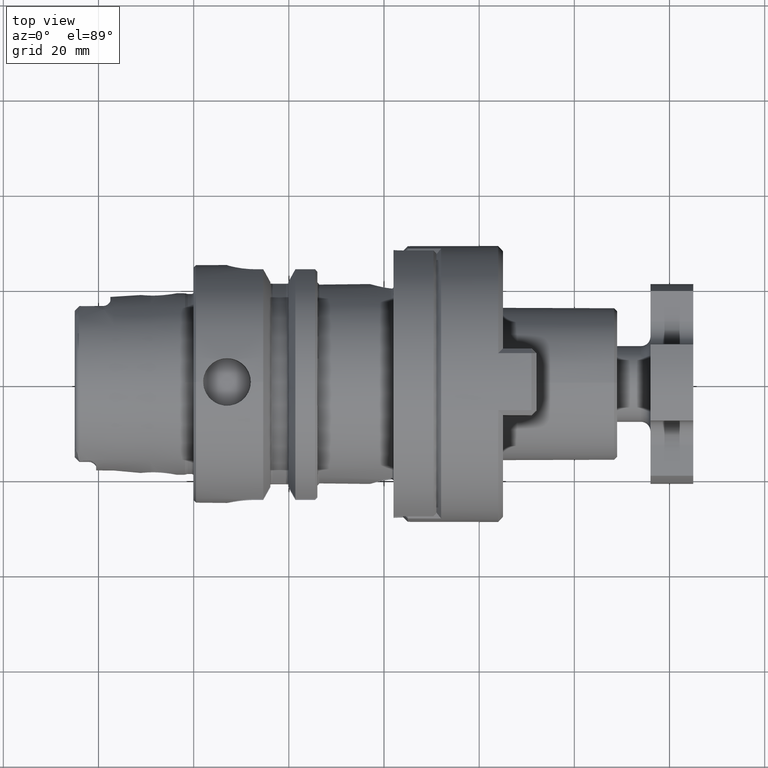
[diagram: clean part render]
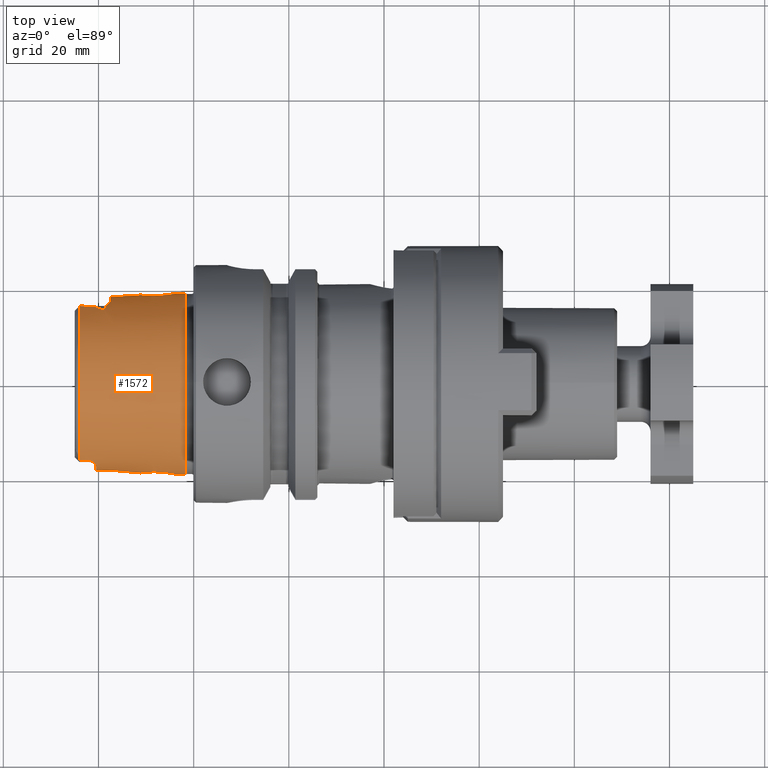
[diagram: same view with one face highlighted and labeled with its STEP entity id]
A machine part, top view. The second image highlights one B-rep face of the part: STEP entity #1572.
In plain terms, the highlighted conical surface has half-angle 2.862 deg.
Its self-contained STEP definition (entity closure, byte-faithful):
#1572 = ADVANCED_FACE( '', ( #3014, #3015, #3016, #3017 ), #3018, .T. );
#3014 = FACE_OUTER_BOUND( '', #3838, .T. );
#3015 = FACE_BOUND( '', #3839, .T. );
#3016 = FACE_BOUND( '', #3840, .T. );
#3017 = FACE_BOUND( '', #3841, .T. );
#3018 = CONICAL_SURFACE( '', #3842, 18.0475050107994, 0.0499583045087421 );
#3838 = EDGE_LOOP( '', ( #4907 ) );
#3839 = EDGE_LOOP( '', ( #4908 ) );
#3840 = EDGE_LOOP( '', ( #4909 ) );
#3841 = EDGE_LOOP( '', ( #4910, #4911, #4912, #4913, #4914, #4915, #4916, #4917, #4918, #4919, #4920, #4921, #4922, #4923, #4924, #4925, #4926, #4927, #4928, #4929 ) );
#3842 = AXIS2_PLACEMENT_3D( '', #4930, #4931, #4932 );
#4907 = ORIENTED_EDGE( '', *, *, #7412, .T. );
#4908 = ORIENTED_EDGE( '', *, *, #7413, .F. );
#4909 = ORIENTED_EDGE( '', *, *, #7414, .F. );
#4910 = ORIENTED_EDGE( '', *, *, #7415, .T. );
#4911 = ORIENTED_EDGE( '', *, *, #7416, .F. );
#4912 = ORIENTED_EDGE( '', *, *, #7417, .T. );
#4913 = ORIENTED_EDGE( '', *, *, #7418, .T. );
#4914 = ORIENTED_EDGE( '', *, *, #7419, .T. );
#4915 = ORIENTED_EDGE( '', *, *, #7420, .T. );
#4916 = ORIENTED_EDGE( '', *, *, #7421, .T. );
#4917 = ORIENTED_EDGE( '', *, *, #7422, .T. );
#4918 = ORIENTED_EDGE( '', *, *, #7423, .T. );
#4919 = ORIENTED_EDGE( '', *, *, #7424, .T. );
#4920 = ORIENTED_EDGE( '', *, *, #7425, .T. );
#4921 = ORIENTED_EDGE( '', *, *, #7426, .T. );
#4922 = ORIENTED_EDGE( '', *, *, #7427, .F. );
#4923 = ORIENTED_EDGE( '', *, *, #7428, .F. );
#4924 = ORIENTED_EDGE( '', *, *, #7429, .F. );
#4925 = ORIENTED_EDGE( '', *, *, #7430, .F. );
#4926 = ORIENTED_EDGE( '', *, *, #7431, .T. );
#4927 = ORIENTED_EDGE( '', *, *, #7432, .F. );
#4928 = ORIENTED_EDGE( '', *, *, #7433, .T. );
#4929 = ORIENTED_EDGE( '', *, *, #7434, .F. );
#4930 = CARTESIAN_POINT( '', ( -24.0499375258445, 0.000000000000000, 0.000000000000000 ) );
#4931 = DIRECTION( '', ( 1.00000000000000, -0.000000000000000, 0.000000000000000 ) );
#4932 = DIRECTION( '', ( 0.000000000000000, 0.000000000000000, -1.00000000000000 ) );
#7412 = EDGE_CURVE( '', #8160, #8160, #8161, .F. );
#7413 = EDGE_CURVE( '', #8162, #8162, #8163, .T. );
#7414 = EDGE_CURVE( '', #8164, #8164, #8165, .T. );
#7415 = EDGE_CURVE( '', #8166, #8167, #8168, .T. );
#7416 = EDGE_CURVE( '', #8169, #8167, #8170, .T. );
#7417 = EDGE_CURVE( '', #8169, #8171, #8172, .T. );
#7418 = EDGE_CURVE( '', #8171, #8173, #8174, .T. );
#7419 = EDGE_CURVE( '', #8173, #8175, #8176, .T. );
#7420 = EDGE_CURVE( '', #8175, #8177, #8178, .T. );
#7421 = EDGE_CURVE( '', #8177, #8179, #8180, .T. );
#7422 = EDGE_CURVE( '', #8179, #8181, #8182, .T. );
#7423 = EDGE_CURVE( '', #8181, #8183, #8184, .T. );
#7424 = EDGE_CURVE( '', #8183, #8185, #8186, .T. );
#7425 = EDGE_CURVE( '', #8185, #8187, #8188, .T. );
#7426 = EDGE_CURVE( '', #8187, #8189, #8190, .T. );
#7427 = EDGE_CURVE( '', #8191, #8189, #8192, .T. );
#7428 = EDGE_CURVE( '', #8193, #8191, #8194, .T. );
#7429 = EDGE_CURVE( '', #8195, #8193, #8196, .T. );
#7430 = EDGE_CURVE( '', #8197, #8195, #8198, .T. );
#7431 = EDGE_CURVE( '', #8197, #8199, #8200, .T. );
#7432 = EDGE_CURVE( '', #8201, #8199, #8202, .T. );
#7433 = EDGE_CURVE( '', #8201, #8203, #8204, .T. );
#7434 = EDGE_CURVE( '', #8166, #8203, #8205, .T. );
#8160 = VERTEX_POINT( '', #8647 );
#8161 = CIRCLE( '', #8648, 19.1585703653503 );
#8162 = VERTEX_POINT( '', #8649 );
#8163 = B_SPLINE_CURVE_WITH_KNOTS( '', 3, ( #8650, #8651, #8652, #8653, #8654, #8655, #8656, #8657, #8658, #8659, #8660, #8661, #8662, #8663, #8664, #8665, #8666, #8667, #8668, #8669, #8670, #8671, #8672, #8673, #8674, #8675, #8676, #8677, #8678, #8679, #8680, #8681, #8682, #8683, #8684, #8685, #8686, #8687, #8688, #8689, #8690, #8691, #8692, #8693, #8694, #8695, #8696, #8697, #8698, #8699, #8700, #8701, #8702, #8703, #8704, #8705, #8706, #8707, #8708, #8709, #8710, #8711, #8712, #8713 ), .UNSPECIFIED., .T., .F., ( 2, 2, 2, 2, 2, 2, 2, 2, 2, 2, 2, 2, 2, 2, 2, 2, 2, 2, 2, 2, 2, 2, 2, 2, 2, 2, 2, 2, 2, 2, 2, 2, 2, 2 ), ( -0.000724843558663982, 0.000000000000000, 0.000724843558663981, 0.00144968711732796, 0.00217453067599194, 0.00289937423465592, 0.00362421779331990, 0.00434906135198388, 0.00507390491064786, 0.00579874846931184, 0.00652359202797582, 0.00724843558663980, 0.00797327914530379, 0.00869812270396777, 0.00942296626263175, 0.0101478098212957, 0.0115974969386237, 0.0123223404972877, 0.0130471840559517, 0.0137720276146157, 0.0144968711732796, 0.0152217147319436, 0.0159465582906076, 0.0166714018492716, 0.0173962454079356, 0.0181210889665996, 0.0188459325252635, 0.0195707760839275, 0.0202956196425915, 0.0210204632012555, 0.0217453067599195, 0.0224701503185834, 0.0231949938772474, 0.0239198374359114 ), .UNSPECIFIED. );
#8164 = VERTEX_POINT( '', #8714 );
#8165 = B_SPLINE_CURVE_WITH_KNOTS( '', 3, ( #8715, #8716, #8717, #8718, #8719, #8720, #8721, #8722, #8723, #8724, #8725, #8726, #8727, #8728, #8729, #8730, #8731, #8732, #8733, #8734, #8735, #8736, #8737, #8738, #8739, #8740, #8741, #8742, #8743, #8744, #8745, #8746, #8747, #8748, #8749, #8750, #8751, #8752, #8753, #8754, #8755, #8756, #8757, #8758, #8759, #8760, #8761, #8762, #8763, #8764, #8765, #8766, #8767, #8768, #8769, #8770, #8771, #8772, #8773, #8774, #8775, #8776, #8777, #8778 ), .UNSPECIFIED., .T., .F., ( 2, 2, 2, 2, 2, 2, 2, 2, 2, 2, 2, 2, 2, 2, 2, 2, 2, 2, 2, 2, 2, 2, 2, 2, 2, 2, 2, 2, 2, 2, 2, 2, 2, 2 ), ( -0.000725615469152767, 0.000000000000000, 0.000725615469152767, 0.00145123093830553, 0.00217684640745830, 0.00290246187661107, 0.00362807734576384, 0.00435369281491660, 0.00580492375322213, 0.00653053922237490, 0.00725615469152767, 0.00798177016068043, 0.00870738562983320, 0.00943300109898597, 0.0101586165681387, 0.0108842320372915, 0.0116098475064443, 0.0123354629755970, 0.0130610784447498, 0.0137866939139026, 0.0145123093830553, 0.0152379248522081, 0.0159635403213609, 0.0166891557905136, 0.0174147712596664, 0.0181403867288192, 0.0188660021979719, 0.0195916176671247, 0.0203172331362775, 0.0210428486054303, 0.0217684640745830, 0.0224940795437358, 0.0232196950128886, 0.0239453104820413 ), .UNSPECIFIED. );
#8166 = VERTEX_POINT( '', #8779 );
#8167 = VERTEX_POINT( '', #8780 );
#8168 = B_SPLINE_CURVE_WITH_KNOTS( '', 3, ( #8781, #8782, #8783, #8784 ), .UNSPECIFIED., .F., .F., ( 4, 4 ), ( 2.14232988485379E-005, 0.000172750419805549 ), .UNSPECIFIED. );
#8169 = VERTEX_POINT( '', #8785 );
#8170 = CIRCLE( '', #8786, 18.0475050107994 );
#8171 = VERTEX_POINT( '', #8787 );
#8172 = B_SPLINE_CURVE_WITH_KNOTS( '', 3, ( #8788, #8789, #8790, #8791 ), .UNSPECIFIED., .F., .F., ( 4, 4 ), ( 6.46585174727302E-007, 0.000151973706116084 ), .UNSPECIFIED. );
#8173 = VERTEX_POINT( '', #8792 );
#8174 = B_SPLINE_CURVE_WITH_KNOTS( '', 3, ( #8793, #8794, #8795, #8796, #8797, #8798, #8799, #8800, #8801, #8802, #8803, #8804, #8805, #8806 ), .UNSPECIFIED., .F., .F., ( 4, 2, 2, 2, 2, 2, 4 ), ( 2.01940335135864E-007, 0.00185399639713627, 0.00278089362553684, 0.00324434223973713, 0.00347606654683726, 0.00359192870038733, 0.00370779085393740 ), .UNSPECIFIED. );
#8175 = VERTEX_POINT( '', #8807 );
#8176 = B_SPLINE_CURVE_WITH_KNOTS( '', 3, ( #8808, #8809, #8810, #8811, #8812, #8813, #8814, #8815 ), .UNSPECIFIED., .F., .F., ( 4, 2, 2, 4 ), ( 0.00272147290960704, 0.00319551936517423, 0.00366956582074142, 0.00461765873187579 ), .UNSPECIFIED. );
#8177 = VERTEX_POINT( '', #8816 );
#8178 = B_SPLINE_CURVE_WITH_KNOTS( '', 3, ( #8817, #8818, #8819, #8820, #8821, #8822, #8823, #8824, #8825, #8826, #8827, #8828 ), .UNSPECIFIED., .F., .F., ( 4, 2, 2, 2, 2, 4 ), ( 0.000211261635213960, 0.000302208030544411, 0.000393154425874861, 0.000575047216535760, 0.000938832797857559, 0.00166640396050116 ), .UNSPECIFIED. );
#8179 = VERTEX_POINT( '', #8829 );
#8180 = B_SPLINE_CURVE_WITH_KNOTS( '', 3, ( #8830, #8831, #8832, #8833, #8834, #8835, #8836, #8837, #8838, #8839, #8840, #8841 ), .UNSPECIFIED., .F., .F., ( 4, 2, 2, 2, 2, 4 ), ( 3.11903676958481E-005, 0.000436488344966224, 0.000841786322236600, 0.00165238227677735, 0.00246297823131810, 0.00327357418585884 ), .UNSPECIFIED. );
#8181 = VERTEX_POINT( '', #8842 );
#8182 = CIRCLE( '', #8843, 18.3750012881573 );
#8183 = VERTEX_POINT( '', #8844 );
#8184 = B_SPLINE_CURVE_WITH_KNOTS( '', 3, ( #8845, #8846, #8847, #8848, #8849, #8850, #8851, #8852, #8853, #8854, #8855, #8856 ), .UNSPECIFIED., .F., .F., ( 4, 2, 2, 2, 2, 4 ), ( 0.000291013436736622, 0.00110220606264915, 0.00191339868856168, 0.00272459131447420, 0.00313018762743046, 0.00353578394038672 ), .UNSPECIFIED. );
#8185 = VERTEX_POINT( '', #8857 );
#8186 = B_SPLINE_CURVE_WITH_KNOTS( '', 3, ( #8858, #8859, #8860, #8861, #8862, #8863, #8864, #8865, #8866, #8867, #8868, #8869 ), .UNSPECIFIED., .F., .F., ( 4, 2, 2, 2, 2, 4 ), ( 6.80275170176832E-005, 0.000787544806764243, 0.00114730345163752, 0.00132718277407416, 0.00141712243529247, 0.00150706209651078 ), .UNSPECIFIED. );
#8187 = VERTEX_POINT( '', #8870 );
#8188 = B_SPLINE_CURVE_WITH_KNOTS( '', 3, ( #8871, #8872, #8873, #8874, #8875, #8876, #8877, #8878 ), .UNSPECIFIED., .F., .F., ( 4, 2, 2, 4 ), ( 0.00221302517324964, 0.00316142336737465, 0.00363562246443716, 0.00410982156149967 ), .UNSPECIFIED. );
#8189 = VERTEX_POINT( '', #8879 );
#8190 = B_SPLINE_CURVE_WITH_KNOTS( '', 3, ( #8880, #8881, #8882, #8883, #8884, #8885, #8886, #8887, #8888, #8889, #8890, #8891, #8892, #8893 ), .UNSPECIFIED., .F., .F., ( 4, 2, 2, 2, 2, 2, 4 ), ( 2.51352268893116E-007, 0.000116655479580614, 0.000233059606892335, 0.000465867861515786, 0.000931484370762687, 0.00186271738925648, 0.00372518342624406 ), .UNSPECIFIED. );
#8191 = VERTEX_POINT( '', #8894 );
#8192 = B_SPLINE_CURVE_WITH_KNOTS( '', 3, ( #8895, #8896, #8897, #8898 ), .UNSPECIFIED., .F., .F., ( 4, 4 ), ( 6.46585174602229E-007, 0.000151973706112484 ), .UNSPECIFIED. );
#8193 = VERTEX_POINT( '', #8899 );
#8194 = CIRCLE( '', #8900, 18.0475050107994 );
#8195 = VERTEX_POINT( '', #8901 );
#8196 = B_SPLINE_CURVE_WITH_KNOTS( '', 3, ( #8902, #8903, #8904, #8905 ), .UNSPECIFIED., .F., .F., ( 4, 4 ), ( 2.14232988485379E-005, 0.000172750419805509 ), .UNSPECIFIED. );
#8197 = VERTEX_POINT( '', #8906 );
#8198 = B_SPLINE_CURVE_WITH_KNOTS( '', 3, ( #8907, #8908, #8909, #8910 ), .UNSPECIFIED., .F., .F., ( 4, 4 ), ( 2.04178204716961E-007, 0.00202823532100584 ), .UNSPECIFIED. );
#8199 = VERTEX_POINT( '', #8911 );
#8200 = B_SPLINE_CURVE_WITH_KNOTS( '', 3, ( #8912, #8913, #8914, #8915, #8916, #8917, #8918, #8919, #8920, #8921, #8922, #8923, #8924, #8925 ), .UNSPECIFIED., .F., .F., ( 4, 2, 2, 2, 2, 2, 4 ), ( 2.00756424701283E-007, 0.000203744668038683, 0.000407288579652665, 0.000814376402880629, 0.00162855204933656, 0.00244272769579249, 0.00325690334224842 ), .UNSPECIFIED. );
#8201 = VERTEX_POINT( '', #8926 );
#8202 = CIRCLE( '', #8927, 18.2250015624809 );
#8203 = VERTEX_POINT( '', #8928 );
#8204 = B_SPLINE_CURVE_WITH_KNOTS( '', 3, ( #8929, #8930, #8931, #8932, #8933, #8934, #8935, #8936, #8937, #8938, #8939, #8940, #8941, #8942 ), .UNSPECIFIED., .F., .F., ( 4, 2, 2, 2, 2, 2, 4 ), ( 0.00129290269146716, 0.00209907635359721, 0.00290525001572726, 0.00371142367785732, 0.00411451050892234, 0.00431605392445485, 0.00451759733998735 ), .UNSPECIFIED. );
#8205 = B_SPLINE_CURVE_WITH_KNOTS( '', 3, ( #8943, #8944, #8945, #8946 ), .UNSPECIFIED., .F., .F., ( 4, 4 ), ( 2.01878463336175E-007, 0.00202823302126446 ), .UNSPECIFIED. );
#8647 = CARTESIAN_POINT( '', ( -1.82858979587799, 0.000000000000000, -19.1585703653503 ) );
#8648 = AXIS2_PLACEMENT_3D( '', #10286, #10287, #10288 );
#8649 = CARTESIAN_POINT( '', ( -10.2908599463775, 18.6017511190253, -2.23432942340282 ) );
#8650 = CARTESIAN_POINT( '', ( -10.1279774041426, 18.5881333561902, -2.41599372957214 ) );
#8651 = CARTESIAN_POINT( '', ( -10.4537424886124, 18.6153688818604, -2.05266511723351 ) );
#8652 = CARTESIAN_POINT( '', ( -10.5959461283574, 18.6290035477480, -1.85744319916897 ) );
#8653 = CARTESIAN_POINT( '', ( -10.8381497541749, 18.6538303613169, -1.43917290266619 ) );
#8654 = CARTESIAN_POINT( '', ( -10.9382767786123, 18.6650537137580, -1.21407183851744 ) );
#8655 = CARTESIAN_POINT( '', ( -11.0845231755962, 18.6819349158933, -0.755007568517809 ) );
#8656 = CARTESIAN_POINT( '', ( -11.1322933703470, 18.6877585960236, -0.518998492982645 ) );
#8657 = CARTESIAN_POINT( '', ( -11.1741083620544, 18.6928439512287, -0.0332254411719322 ) );
#8658 = CARTESIAN_POINT( '', ( -11.1672232686855, 18.6919863495704, 0.209951666969049 ) );
#8659 = CARTESIAN_POINT( '', ( -11.1000637213220, 18.6838758857570, 0.687574382991957 ) );
#8660 = CARTESIAN_POINT( '', ( -11.0385831413961, 18.6764875688839, 0.926242192376346 ) );
#8661 = CARTESIAN_POINT( '', ( -10.8672132656425, 18.6571450780586, 1.37860491017681 ) );
#8662 = CARTESIAN_POINT( '', ( -10.7578311450129, 18.6452464549886, 1.59362034618035 ) );
#8663 = CARTESIAN_POINT( '', ( -10.4928364755205, 18.6191565968126, 2.00197012050020 ) );
#8664 = CARTESIAN_POINT( '', ( -10.3398957095081, 18.6052634056045, 2.19071162819878 ) );
#8665 = CARTESIAN_POINT( '', ( -10.0009789192162, 18.5787499914818, 2.53382548819683 ) );
#8666 = CARTESIAN_POINT( '', ( -9.81213889390907, 18.5659502733720, 2.69052158141489 ) );
#8667 = CARTESIAN_POINT( '', ( -9.41201568789014, 18.5446864985824, 2.96294184005932 ) );
#8668 = CARTESIAN_POINT( '', ( -9.20087916324063, 18.5361716958727, 3.07931488831524 ) );
#8669 = CARTESIAN_POINT( '', ( -8.75722696485886, 18.5253193402697, 3.27391138505085 ) );
#8670 = CARTESIAN_POINT( '', ( -8.52440999531067, 18.5230717642348, 3.35164285101333 ) );
#8671 = CARTESIAN_POINT( '', ( -8.05520233646765, 18.5263095311400, 3.46371584939362 ) );
#8672 = CARTESIAN_POINT( '', ( -7.81664736204771, 18.5317144860687, 3.49913374622782 ) );
#8673 = CARTESIAN_POINT( '', ( -7.33159936122422, 18.5508350184918, 3.52849055020882 ) );
#8674 = CARTESIAN_POINT( '', ( -7.08836278969868, 18.5644802198904, 3.52192824679093 ) );
#8675 = CARTESIAN_POINT( '', ( -6.61098927801361, 18.5988911445222, 3.46810405110015 ) );
#8676 = CARTESIAN_POINT( '', ( -6.37519537643175, 18.6197194508143, 3.42096775893413 ) );
#8677 = CARTESIAN_POINT( '', ( -5.90957640219331, 18.6679266293188, 3.28443344641982 ) );
#8678 = CARTESIAN_POINT( '', ( -5.68554319278493, 18.6947111126291, 3.19662940196973 ) );
#8679 = CARTESIAN_POINT( '', ( -5.04398187012815, 18.7799051642344, 2.87743922315724 ) );
#8680 = CARTESIAN_POINT( '', ( -4.64929909831054, 18.8446425169316, 2.58350805418667 ) );
#8681 = CARTESIAN_POINT( '', ( -4.16978144949489, 18.9314179573039, 2.05247671279455 ) );
#8682 = CARTESIAN_POINT( '', ( -4.02575546327014, 18.9590685021268, 1.85778420702719 ) );
#8683 = CARTESIAN_POINT( '', ( -3.78075087164675, 19.0076579955039, 1.43994082017695 ) );
#8684 = CARTESIAN_POINT( '', ( -3.68202061244604, 19.0281101187265, 1.22144002942462 ) );
#8685 = CARTESIAN_POINT( '', ( -3.53321979765030, 19.0593782245366, 0.764688888109990 ) );
#8686 = CARTESIAN_POINT( '', ( -3.48315125714093, 19.0701966429527, 0.522884816584227 ) );
#8687 = CARTESIAN_POINT( '', ( -3.44021692774245, 19.0794659942021, 0.0411244122279810 ) );
#8688 = CARTESIAN_POINT( '', ( -3.44612522887747, 19.0781727148729, -0.199938476691123 ) );
#8689 = CARTESIAN_POINT( '', ( -3.51370674970185, 19.0636306096781, -0.682436230679637 ) );
#8690 = CARTESIAN_POINT( '', ( -3.57510073768663, 19.0504525930587, -0.918544035603408 ) );
#8691 = CARTESIAN_POINT( '', ( -3.74661800750630, 19.0147735068634, -1.36924248572688 ) );
#8692 = CARTESIAN_POINT( '', ( -3.85868254664405, 18.9918926506330, -1.58779549778606 ) );
#8693 = CARTESIAN_POINT( '', ( -4.12201192991769, 18.9405946605373, -1.99130626293864 ) );
#8694 = CARTESIAN_POINT( '', ( -4.27336910665877, 18.9121391568349, -2.17793656594234 ) );
#8695 = CARTESIAN_POINT( '', ( -4.61398493715294, 18.8521023661762, -2.52240662662650 ) );
#8696 = CARTESIAN_POINT( '', ( -4.79958151258354, 18.8211962566262, -2.67631334221666 ) );
#8697 = CARTESIAN_POINT( '', ( -5.19515927346588, 18.7606431283953, -2.94732920917054 ) );
#8698 = CARTESIAN_POINT( '', ( -5.40786350037675, 18.7306228512507, -3.06586294127225 ) );
#8699 = CARTESIAN_POINT( '', ( -5.84840235366385, 18.6751044207219, -3.26199082286598 ) );
#8700 = CARTESIAN_POINT( '', ( -6.07540431009311, 18.6496512787036, -3.33974258392915 ) );
#8701 = CARTESIAN_POINT( '', ( -6.54261258222813, 18.6047181670169, -3.45589338034628 ) );
#8702 = CARTESIAN_POINT( '', ( -6.78487231014812, 18.5851503329699, -3.49417893183156 ) );
#8703 = CARTESIAN_POINT( '', ( -7.26629164874393, 18.5542493987118, -3.52804609288204 ) );
#8704 = CARTESIAN_POINT( '', ( -7.50688137009108, 18.5427165515644, -3.52432007413537 ) );
#8705 = CARTESIAN_POINT( '', ( -7.98781679937778, 18.5275363595644, -3.47511098434871 ) );
#8706 = CARTESIAN_POINT( '', ( -8.22957032474445, 18.5239620952828, -3.42884543695906 ) );
#8707 = CARTESIAN_POINT( '', ( -8.69389300935681, 18.5243919658496, -3.29649515589156 ) );
#8708 = CARTESIAN_POINT( '', ( -8.91871058744292, 18.5282810993105, -3.21044816740753 ) );
#8709 = CARTESIAN_POINT( '', ( -9.35308774855878, 18.5420007732858, -2.99700731045556 ) );
#8710 = CARTESIAN_POINT( '', ( -9.56293753130003, 18.5519210394630, -2.86875818823436 ) );
#8711 = CARTESIAN_POINT( '', ( -9.94910630313647, 18.5749496696642, -2.57880909304090 ) );
#8712 = CARTESIAN_POINT( '', ( -10.1279774041426, 18.5881333561902, -2.41599372957214 ) );
#8713 = CARTESIAN_POINT( '', ( -10.4537424886124, 18.6153688818604, -2.05266511723351 ) );
#8714 = CARTESIAN_POINT( '', ( -10.1273578629441, -18.5886780822722, -2.40516417893662 ) );
#8715 = CARTESIAN_POINT( '', ( -10.3016153459897, -18.6019745687265, -2.23450026987628 ) );
#8716 = CARTESIAN_POINT( '', ( -9.95310037989851, -18.5753815958180, -2.57582808799696 ) );
#8717 = CARTESIAN_POINT( '', ( -9.76442887777998, -18.5630164949644, -2.72699176861366 ) );
#8718 = CARTESIAN_POINT( '', ( -9.36018603272745, -18.5424422713584, -2.99311522524026 ) );
#8719 = CARTESIAN_POINT( '', ( -9.14319425524576, -18.5342470445291, -3.10824468833588 ) );
#8720 = CARTESIAN_POINT( '', ( -8.69803150574765, -18.5245401489631, -3.29514673136143 ) );
#8721 = CARTESIAN_POINT( '', ( -8.46825051653360, -18.5229067074191, -3.36823543646232 ) );
#8722 = CARTESIAN_POINT( '', ( -7.99443867068232, -18.5274369753169, -3.47415423113694 ) );
#8723 = CARTESIAN_POINT( '', ( -7.75221730462491, -18.5336634650796, -3.50615690181692 ) );
#8724 = CARTESIAN_POINT( '', ( -7.27136007891697, -18.5539765137800, -3.52808180339144 ) );
#8725 = CARTESIAN_POINT( '', ( -7.03069261877985, -18.5680712846974, -3.51850180339327 ) );
#8726 = CARTESIAN_POINT( '', ( -6.54885525387101, -18.6040967814196, -3.45715006380882 ) );
#8727 = CARTESIAN_POINT( '', ( -6.31270479337658, -18.6256764409050, -3.40585053349709 ) );
#8728 = CARTESIAN_POINT( '', ( -5.62660389288398, -18.6984747285829, -3.19363929766840 ) );
#8729 = CARTESIAN_POINT( '', ( -5.18899936483275, -18.7593677719414, -2.96915564904855 ) );
#8730 = CARTESIAN_POINT( '', ( -4.62399465494483, -18.8502686601041, -2.53067801368361 ) );
#8731 = CARTESIAN_POINT( '', ( -4.44823476445954, -18.8807968439908, -2.36614257267842 ) );
#8732 = CARTESIAN_POINT( '', ( -4.13001584236369, -18.9389125980755, -2.00161326344006 ) );
#8733 = CARTESIAN_POINT( '', ( -3.99155326784500, -18.9657310271404, -1.80652693780823 ) );
#8734 = CARTESIAN_POINT( '', ( -3.75673435244925, -19.0125755567406, -1.38994267997858 ) );
#8735 = CARTESIAN_POINT( '', ( -3.65946524356200, -19.0328043453857, -1.16519938944624 ) );
#8736 = CARTESIAN_POINT( '', ( -3.51831635823763, -19.0625692673972, -0.702112572952674 ) );
#8737 = CARTESIAN_POINT( '', ( -3.47418448039927, -19.0721298590398, -0.465776560470618 ) );
#8738 = CARTESIAN_POINT( '', ( -3.43998800436518, -19.0795189244972, 0.0167263370341043 ) );
#8739 = CARTESIAN_POINT( '', ( -3.45094806860976, -19.0771229887026, 0.263432431115673 ) );
#8740 = CARTESIAN_POINT( '', ( -3.52700925201969, -19.0607833814968, 0.739908387545198 ) );
#8741 = CARTESIAN_POINT( '', ( -3.59253833871543, -19.0467552577710, 0.975337442413110 ) );
#8742 = CARTESIAN_POINT( '', ( -3.77347860427130, -19.0092754267220, 1.42570662092211 ) );
#8743 = CARTESIAN_POINT( '', ( -3.88710347293330, -18.9862014676925, 1.63779574975542 ) );
#8744 = CARTESIAN_POINT( '', ( -4.15764270664079, -18.9338497379123, 2.03769702277724 ) );
#8745 = CARTESIAN_POINT( '', ( -4.31451152840677, -18.9046250237818, 2.22435058948602 ) );
#8746 = CARTESIAN_POINT( '', ( -4.65720434683339, -18.8448205536138, 2.55994628984525 ) );
#8747 = CARTESIAN_POINT( '', ( -4.84575474076755, -18.8137563443588, 2.71188620686049 ) );
#8748 = CARTESIAN_POINT( '', ( -5.24837589154708, -18.7529736281062, 2.97873305974468 ) );
#8749 = CARTESIAN_POINT( '', ( -5.45961092426128, -18.7236604841441, 3.09214832187809 ) );
#8750 = CARTESIAN_POINT( '', ( -5.90102819018574, -18.6690314650577, 3.28129815276522 ) );
#8751 = CARTESIAN_POINT( '', ( -6.13342961549436, -18.6435329606043, 3.35733875394719 ) );
#8752 = CARTESIAN_POINT( '', ( -6.60292304085682, -18.5996107641401, 3.46679968241090 ) );
#8753 = CARTESIAN_POINT( '', ( -6.84074945855436, -18.5810266442523, 3.50096719528564 ) );
#8754 = CARTESIAN_POINT( '', ( -7.32258506801116, -18.5513146588345, 3.52839566713042 ) );
#8755 = CARTESIAN_POINT( '', ( -7.56828822078017, -18.5402013535999, 3.52113376961231 ) );
#8756 = CARTESIAN_POINT( '', ( -8.04778640148757, -18.5263876389234, 3.46498162231797 ) );
#8757 = CARTESIAN_POINT( '', ( -8.28357385589821, -18.5235124820541, 3.41648347147625 ) );
#8758 = CARTESIAN_POINT( '', ( -8.74699655233155, -18.5250712978267, 3.27753736201547 ) );
#8759 = CARTESIAN_POINT( '', ( -8.97547971549466, -18.5296121959029, 3.18614861079287 ) );
#8760 = CARTESIAN_POINT( '', ( -9.40487396883193, -18.5442320586989, 2.96693057124475 ) );
#8761 = CARTESIAN_POINT( '', ( -9.60826138523424, -18.5542901783363, 2.83861275870599 ) );
#8762 = CARTESIAN_POINT( '', ( -9.99117683363563, -18.5778781521980, 2.54234166670496 ) );
#8763 = CARTESIAN_POINT( '', ( -10.1699571015821, -18.5914145602827, 2.37408403303054 ) );
#8764 = CARTESIAN_POINT( '', ( -10.4853901150818, -18.6183036682080, 2.01117374246342 ) );
#8765 = CARTESIAN_POINT( '', ( -10.6244476467046, -18.6318033674200, 1.81489488658185 ) );
#8766 = CARTESIAN_POINT( '', ( -10.8619015167032, -18.6564168012818, 1.38985950630275 ) );
#8767 = CARTESIAN_POINT( '', ( -10.9572146558554, -18.6671984673966, 1.16571183307694 ) );
#8768 = CARTESIAN_POINT( '', ( -11.0961130087998, -18.6833241563974, 0.704883131483014 ) );
#8769 = CARTESIAN_POINT( '', ( -11.1407755543601, -18.6887874572408, 0.463564393960839 ) );
#8770 = CARTESIAN_POINT( '', ( -11.1741631409831, -18.6928541108185, -0.0215725129305697 ) );
#8771 = CARTESIAN_POINT( '', ( -11.1634501449789, -18.6915189539940, -0.262641341546650 ) );
#8772 = CARTESIAN_POINT( '', ( -11.0878885045304, -18.6824200635269, -0.741818298153449 ) );
#8773 = CARTESIAN_POINT( '', ( -11.0222701473047, -18.6745771727995, -0.979275683086777 ) );
#8774 = CARTESIAN_POINT( '', ( -10.8437301478286, -18.6545810381886, -1.42805768348223 ) );
#8775 = CARTESIAN_POINT( '', ( -10.7292227803782, -18.6422603934208, -1.64425707826859 ) );
#8776 = CARTESIAN_POINT( '', ( -10.4575232623652, -18.6158944779118, -2.04806159353067 ) );
#8777 = CARTESIAN_POINT( '', ( -10.3016153459897, -18.6019745687265, -2.23450026987628 ) );
#8778 = CARTESIAN_POINT( '', ( -9.95310037989851, -18.5753815958180, -2.57582808799696 ) );
#8779 = CARTESIAN_POINT( '', ( -24.0000000000000, -16.2511446503509, -7.85511715460292 ) );
#8780 = CARTESIAN_POINT( '', ( -24.0499375258445, -16.1862354055114, -7.98236935453351 ) );
#8781 = CARTESIAN_POINT( '', ( -24.0000000000000, -16.2511446503509, -7.85511715460293 ) );
#8782 = CARTESIAN_POINT( '', ( -24.0176434256095, -16.2297886497701, -7.89727264177421 ) );
#8783 = CARTESIAN_POINT( '', ( -24.0343349831420, -16.2081488003637, -7.93969830915185 ) );
#8784 = CARTESIAN_POINT( '', ( -24.0499375258445, -16.1862354055115, -7.98236935453353 ) );
#8785 = CARTESIAN_POINT( '', ( -24.0499375258445, 16.1862354055205, -7.98236935451523 ) );
#8786 = AXIS2_PLACEMENT_3D( '', #10289, #10290, #10291 );
#8787 = CARTESIAN_POINT( '', ( -24.0000000000000, 16.2511446503527, -7.85511715459960 ) );
#8788 = CARTESIAN_POINT( '', ( -24.0499375258385, 16.1862354055198, -7.98236935451726 ) );
#8789 = CARTESIAN_POINT( '', ( -24.0343349831374, 16.2081488003697, -7.93969830914006 ) );
#8790 = CARTESIAN_POINT( '', ( -24.0176434256065, 16.2297886497738, -7.89727264176685 ) );
#8791 = CARTESIAN_POINT( '', ( -23.9999999999987, 16.2511446503524, -7.85511715459994 ) );
#8792 = CARTESIAN_POINT( '', ( -20.4506425147890, 16.0005955275683, -8.73049738938027 ) );
#8793 = CARTESIAN_POINT( '', ( -24.0000000000000, 16.2511446503528, -7.85511715459966 ) );
#8794 = CARTESIAN_POINT( '', ( -23.3880060641272, 16.2437362451321, -7.94075797016679 ) );
#8795 = CARTESIAN_POINT( '', ( -22.7770224920810, 16.2318266337239, -8.03463086706348 ) );
#8796 = CARTESIAN_POINT( '', ( -21.8680123429887, 16.1934940172482, -8.21196333234866 ) );
#8797 = CARTESIAN_POINT( '', ( -21.5658887748903, 16.1775806199591, -8.27670488637868 ) );
#8798 = CARTESIAN_POINT( '', ( -21.1203486177954, 16.1396283232969, -8.39852439540069 ) );
#8799 = CARTESIAN_POINT( '', ( -20.9728696338009, 16.1247771977109, -8.44301121177578 ) );
#8800 = CARTESIAN_POINT( '', ( -20.7586041356257, 16.0931889510442, -8.52582391456108 ) );
#8801 = CARTESIAN_POINT( '', ( -20.6881728286294, 16.0811203044647, -8.55610558604405 ) );
#8802 = CARTESIAN_POINT( '', ( -20.5887922987866, 16.0576779954958, -8.61047281579440 ) );
#8803 = CARTESIAN_POINT( '', ( -20.5568170316347, 16.0490000782895, -8.63002593410945 ) );
#8804 = CARTESIAN_POINT( '', ( -20.4975144035444, 16.0281571281079, -8.67490639772902 ) );
#8805 = CARTESIAN_POINT( '', ( -20.4696771538864, 16.0158936640042, -8.70047310609659 ) );
#8806 = CARTESIAN_POINT( '', ( -20.4506425147880, 16.0005955275686, -8.73049738937987 ) );
#8807 = CARTESIAN_POINT( '', ( -19.0000000000000, 15.4592746226383, -9.79289948424529 ) );
#8808 = CARTESIAN_POINT( '', ( -20.4506425147894, 16.0005955275681, -8.73049738938049 ) );
#8809 = CARTESIAN_POINT( '', ( -20.3720907833511, 15.9374635134233, -8.85440094357483 ) );
#8810 = CARTESIAN_POINT( '', ( -20.2714392092565, 15.8812563332086, -8.96471374594893 ) );
#8811 = CARTESIAN_POINT( '', ( -20.0478999084038, 15.7774814857604, -9.16838335175801 ) );
#8812 = CARTESIAN_POINT( '', ( -19.9273648882670, 15.7311136235065, -9.25938540533545 ) );
#8813 = CARTESIAN_POINT( '', ( -19.5507950071035, 15.6014333983101, -9.51389717766205 ) );
#8814 = CARTESIAN_POINT( '', ( -19.2794664544647, 15.5272762205526, -9.65943883378757 ) );
#8815 = CARTESIAN_POINT( '', ( -19.0000000000001, 15.4592746226383, -9.79289948424542 ) );
#8816 = CARTESIAN_POINT( '', ( -18.4629886912973, 16.0891811399698, -8.77563401335610 ) );
#8817 = CARTESIAN_POINT( '', ( -19.0000000000000, 15.4592746226383, -9.79289948424528 ) );
#8818 = CARTESIAN_POINT( '', ( -18.9729812597171, 15.4527002467749, -9.80580242338200 ) );
#8819 = CARTESIAN_POINT( '', ( -18.9422961523966, 15.4499209440413, -9.81303262250062 ) );
#8820 = CARTESIAN_POINT( '', ( -18.8819949065251, 15.4555135978038, -9.80984930724164 ) );
#8821 = CARTESIAN_POINT( '', ( -18.8530622139977, 15.4636443442938, -9.79974594329239 ) );
#8822 = CARTESIAN_POINT( '', ( -18.7779806052470, 15.4952812629169, -9.75674071183972 ) );
#8823 = CARTESIAN_POINT( '', ( -18.7419598162477, 15.5238982065802, -9.71461407309121 ) );
#8824 = CARTESIAN_POINT( '', ( -18.6510816232042, 15.6102382314238, -9.58437173295041 ) );
#8825 = CARTESIAN_POINT( '', ( -18.6118468375739, 15.6724361462328, -9.48624569282868 ) );
#8826 = CARTESIAN_POINT( '', ( -18.5161890317043, 15.8542515777580, -9.19087448091109 ) );
#8827 = CARTESIAN_POINT( '', ( -18.4831932134918, 15.9734530834904, -8.98569922692214 ) );
#8828 = CARTESIAN_POINT( '', ( -18.4629886912973, 16.0891811399698, -8.77563401335611 ) );
#8829 = CARTESIAN_POINT( '', ( -17.5000000000000, 17.3778432709260, -5.97086556463228 ) );
#8830 = CARTESIAN_POINT( '', ( -18.4629886912949, 16.0891811399696, -8.77563401335685 ) );
#8831 = CARTESIAN_POINT( '', ( -18.4513409959531, 16.1558971519290, -8.65453361880363 ) );
#8832 = CARTESIAN_POINT( '', ( -18.4114756351152, 16.2181344697366, -8.54142545518635 ) );
#8833 = CARTESIAN_POINT( '', ( -18.3138467206793, 16.3385153740621, -8.31959864232917 ) );
#8834 = CARTESIAN_POINT( '', ( -18.2559011350526, 16.3966364348941, -8.21087994305990 ) );
#8835 = CARTESIAN_POINT( '', ( -18.0796787347344, 16.5673990225087, -7.88403753607246 ) );
#8836 = CARTESIAN_POINT( '', ( -17.9592130463660, 16.6764721096286, -7.66522459344887 ) );
#8837 = CARTESIAN_POINT( '', ( -17.7513582347175, 16.8893579316139, -7.21051607417649 ) );
#8838 = CARTESIAN_POINT( '', ( -17.6623404889595, 16.9931584080926, -6.97469184441284 ) );
#8839 = CARTESIAN_POINT( '', ( -17.5359448322615, 17.1946404359807, -6.47999137648496 ) );
#8840 = CARTESIAN_POINT( '', ( -17.5000000000000, 17.2894465414838, -6.22813890185310 ) );
#8841 = CARTESIAN_POINT( '', ( -17.5000000000000, 17.3778432709260, -5.97086556463229 ) );
#8842 = CARTESIAN_POINT( '', ( -17.5000000000000, 17.3778432709312, 5.97086556461718 ) );
#8843 = AXIS2_PLACEMENT_3D( '', #10292, #10293, #10294 );
#8844 = CARTESIAN_POINT( '', ( -18.4629886912974, 16.0891811399691, 8.77563401335738 ) );
#8845 = CARTESIAN_POINT( '', ( -17.5000000000000, 17.3778432709312, 5.97086556461719 ) );
#8846 = CARTESIAN_POINT( '', ( -17.4999999999986, 17.2897804017518, 6.22716722172675 ) );
#8847 = CARTESIAN_POINT( '', ( -17.5360224038362, 17.1946778519140, 6.47981839684677 ) );
#8848 = CARTESIAN_POINT( '', ( -17.6614590780081, 16.9944033867096, 6.97171563260525 ) );
#8849 = CARTESIAN_POINT( '', ( -17.7496920502492, 16.8912214999170, 7.20635596970689 ) );
#8850 = CARTESIAN_POINT( '', ( -17.9569727246621, 16.6786125288668, 7.66082912337017 ) );
#8851 = CARTESIAN_POINT( '', ( -18.0775341323961, 16.5693552648737, 7.88017666832981 ) );
#8852 = CARTESIAN_POINT( '', ( -18.2539074119724, 16.3986277624116, 8.20712529646911 ) );
#8853 = CARTESIAN_POINT( '', ( -18.3119537643511, 16.3405522377028, 8.31581250154794 ) );
#8854 = CARTESIAN_POINT( '', ( -18.4103669276952, 16.2197898278876, 8.53840692457094 ) );
#8855 = CARTESIAN_POINT( '', ( -18.4511158586795, 16.1571866997768, 8.65219288007397 ) );
#8856 = CARTESIAN_POINT( '', ( -18.4629886912855, 16.0891811399675, 8.77563401336170 ) );
#8857 = CARTESIAN_POINT( '', ( -19.0000000000000, 15.4592746226383, 9.79289948424523 ) );
#8858 = CARTESIAN_POINT( '', ( -18.4629886912973, 16.0891811399691, 8.77563401335741 ) );
#8859 = CARTESIAN_POINT( '', ( -18.4831776186591, 15.9735424080311, 8.98553708837693 ) );
#8860 = CARTESIAN_POINT( '', ( -18.5161061321865, 15.8540923569737, 9.19119087597270 ) );
#8861 = CARTESIAN_POINT( '', ( -18.6125843994389, 15.6711943878632, 9.48823383246686 ) );
#8862 = CARTESIAN_POINT( '', ( -18.6509456113739, 15.6102735720895, 9.58433323372174 ) );
#8863 = CARTESIAN_POINT( '', ( -18.7424691075146, 15.5234616276409, 9.71526518492388 ) );
#8864 = CARTESIAN_POINT( '', ( -18.7789212800351, 15.4948128011054, 9.75739442201910 ) );
#8865 = CARTESIAN_POINT( '', ( -18.8531318482779, 15.4636514437961, 9.79972774365547 ) );
#8866 = CARTESIAN_POINT( '', ( -18.8820438492966, 15.4554968580274, 9.80987110932396 ) );
#8867 = CARTESIAN_POINT( '', ( -18.9424595941565, 15.4499180291289, 9.81302196456024 ) );
#8868 = CARTESIAN_POINT( '', ( -18.9729670108201, 15.4526967796403, 9.80580922801669 ) );
#8869 = CARTESIAN_POINT( '', ( -19.0000000000001, 15.4592746226382, 9.79289948424549 ) );
#8870 = CARTESIAN_POINT( '', ( -20.4506425147890, 16.0005955275683, 8.73049738938013 ) );
#8871 = CARTESIAN_POINT( '', ( -19.0000000000002, 15.4592746226382, 9.79289948424548 ) );
#8872 = CARTESIAN_POINT( '', ( -19.2796356744987, 15.5273173962734, 9.65935802188543 ) );
#8873 = CARTESIAN_POINT( '', ( -19.5521537469976, 15.6017651311189, 9.51324611536641 ) );
#8874 = CARTESIAN_POINT( '', ( -19.9304436184650, 15.7322429614895, 9.25716895474561 ) );
#8875 = CARTESIAN_POINT( '', ( -20.0504970214415, 15.7786332958873, 9.16612279710255 ) );
#8876 = CARTESIAN_POINT( '', ( -20.2706897939395, 15.8809627433249, 8.96528994853911 ) );
#8877 = CARTESIAN_POINT( '', ( -20.3725049066037, 15.9377963442158, 8.85374772636489 ) );
#8878 = CARTESIAN_POINT( '', ( -20.4506425147896, 16.0005955275682, 8.73049738938041 ) );
#8879 = CARTESIAN_POINT( '', ( -24.0000000000000, 16.2511446503509, 7.85511715460292 ) );
#8880 = CARTESIAN_POINT( '', ( -20.4506425147894, 16.0005955275682, 8.73049738938041 ) );
#8881 = CARTESIAN_POINT( '', ( -20.4702067629220, 16.0163193107010, 8.69963772741763 ) );
#8882 = CARTESIAN_POINT( '', ( -20.4975894486100, 16.0282170940399, 8.67478865291057 ) );
#8883 = CARTESIAN_POINT( '', ( -20.5578441128842, 16.0493268530711, 8.62931071208482 ) );
#8884 = CARTESIAN_POINT( '', ( -20.5903501214357, 16.0580867077298, 8.60954573691618 ) );
#8885 = CARTESIAN_POINT( '', ( -20.6902017098003, 16.0815131138255, 8.55515132444689 ) );
#8886 = CARTESIAN_POINT( '', ( -20.7605776052254, 16.0935232481074, 8.52498245429013 ) );
#8887 = CARTESIAN_POINT( '', ( -20.9763087374580, 16.1251952273962, 8.44184357785303 ) );
#8888 = CARTESIAN_POINT( '', ( -21.1234890546659, 16.1399304147108, 8.39760285925414 ) );
#8889 = CARTESIAN_POINT( '', ( -21.5681177404985, 16.1777003246970, 8.27622302407600 ) );
#8890 = CARTESIAN_POINT( '', ( -21.8692748579574, 16.1935557849026, 8.21170146574319 ) );
#8891 = CARTESIAN_POINT( '', ( -22.7774907896553, 16.2318292836766, 8.03457072995579 ) );
#8892 = CARTESIAN_POINT( '', ( -23.3883012083466, 16.2437398179604, 7.94071666846012 ) );
#8893 = CARTESIAN_POINT( '', ( -23.9999999999988, 16.2511446503548, 7.85511715459625 ) );
#8894 = CARTESIAN_POINT( '', ( -24.0499375258445, 16.1862354055204, 7.98236935451533 ) );
#8895 = CARTESIAN_POINT( '', ( -24.0499375258386, 16.1862354055198, 7.98236935451735 ) );
#8896 = CARTESIAN_POINT( '', ( -24.0343349831378, 16.2081488003692, 7.93969830914113 ) );
#8897 = CARTESIAN_POINT( '', ( -24.0176434256073, 16.2297886497728, 7.89727264176889 ) );
#8898 = CARTESIAN_POINT( '', ( -24.0000000000000, 16.2511446503509, 7.85511715460293 ) );
#8899 = CARTESIAN_POINT( '', ( -24.0499375258445, -16.1862354055115, 7.98236935453348 ) );
#8900 = AXIS2_PLACEMENT_3D( '', #10295, #10296, #10297 );
#8901 = CARTESIAN_POINT( '', ( -24.0000000000000, -16.2511446503509, 7.85511715460291 ) );
#8902 = CARTESIAN_POINT( '', ( -24.0000000000000, -16.2511446503509, 7.85511715460292 ) );
#8903 = CARTESIAN_POINT( '', ( -24.0176434256095, -16.2297886497701, 7.89727264177420 ) );
#8904 = CARTESIAN_POINT( '', ( -24.0343349831420, -16.2081488003637, 7.93969830915182 ) );
#8905 = CARTESIAN_POINT( '', ( -24.0499375258445, -16.1862354055115, 7.98236935453349 ) );
#8906 = CARTESIAN_POINT( '', ( -22.0000000000000, -16.1986249496705, 8.18700869896614 ) );
#8907 = CARTESIAN_POINT( '', ( -22.0000000000000, -16.1986249496705, 8.18700869896623 ) );
#8908 = CARTESIAN_POINT( '', ( -22.6621775147268, -16.2300045930345, 8.05152183598695 ) );
#8909 = CARTESIAN_POINT( '', ( -23.3302800585158, -16.2430374512102, 7.94883599498440 ) );
#8910 = CARTESIAN_POINT( '', ( -24.0000000000000, -16.2511446503509, 7.85511715460298 ) );
#8911 = CARTESIAN_POINT( '', ( -20.5000000000000, -17.2824474108503, 5.78512691681229 ) );
#8912 = CARTESIAN_POINT( '', ( -22.0000000000000, -16.1986249496705, 8.18700869896623 ) );
#8913 = CARTESIAN_POINT( '', ( -21.9324074354931, -16.1954218349149, 8.20083868310507 ) );
#8914 = CARTESIAN_POINT( '', ( -21.8626299124312, -16.2015466518157, 8.19648407033781 ) );
#8915 = CARTESIAN_POINT( '', ( -21.7343796313007, -16.2280029333129, 8.15826506603102 ) );
#8916 = CARTESIAN_POINT( '', ( -21.6755891042338, -16.2473020818053, 8.12640910144141 ) );
#8917 = CARTESIAN_POINT( '', ( -21.5142535657946, -16.3099318324760, 8.01858993201056 ) );
#8918 = CARTESIAN_POINT( '', ( -21.4217068923288, -16.3588870547866, 7.92910775033990 ) );
#8919 = CARTESIAN_POINT( '', ( -21.1663798867816, -16.5056253810743, 7.65149642396408 ) );
#8920 = CARTESIAN_POINT( '', ( -21.0216990660328, -16.6083793630045, 7.44447264364641 ) );
#8921 = CARTESIAN_POINT( '', ( -20.7766924369959, -16.8105959582069, 7.00773403563789 ) );
#8922 = CARTESIAN_POINT( '', ( -20.6785228345581, -16.9097630122534, 6.77885817430176 ) );
#8923 = CARTESIAN_POINT( '', ( -20.5397036129404, -17.1028233230131, 6.29597963110460 ) );
#8924 = CARTESIAN_POINT( '', ( -20.5000000000000, -17.1969363150344, 6.04058216226052 ) );
#8925 = CARTESIAN_POINT( '', ( -20.5000000000000, -17.2824474108503, 5.78512691681230 ) );
#8926 = CARTESIAN_POINT( '', ( -20.5000000000000, -17.2824474108503, -5.78512691681229 ) );
#8927 = AXIS2_PLACEMENT_3D( '', #10298, #10299, #10300 );
#8928 = CARTESIAN_POINT( '', ( -22.0000000000000, -16.1986249496705, -8.18700869896614 ) );
#8929 = CARTESIAN_POINT( '', ( -20.4999999999995, -17.2824474108504, -5.78512691681229 ) );
#8930 = CARTESIAN_POINT( '', ( -20.4999999999995, -17.1969958803447, -6.04040421727204 ) );
#8931 = CARTESIAN_POINT( '', ( -20.5397347767846, -17.1028510413271, -6.29587435892945 ) );
#8932 = CARTESIAN_POINT( '', ( -20.6781044983906, -16.9102739452801, -6.77761608225169 ) );
#8933 = CARTESIAN_POINT( '', ( -20.7775801111737, -16.8097418773993, -7.00967509018677 ) );
#8934 = CARTESIAN_POINT( '', ( -21.0232063065865, -16.6072579878934, -7.44679714716276 ) );
#8935 = CARTESIAN_POINT( '', ( -21.1658086767595, -16.5060002016510, -7.65076060949135 ) );
#8936 = CARTESIAN_POINT( '', ( -21.4212032497416, -16.3591533386681, -7.92861726080811 ) );
#8937 = CARTESIAN_POINT( '', ( -21.5136156443582, -16.3101783826954, -8.01816589565540 ) );
#8938 = CARTESIAN_POINT( '', ( -21.6759256399805, -16.2471719842347, -8.12663286467597 ) );
#8939 = CARTESIAN_POINT( '', ( -21.7334063830059, -16.2282784279360, -8.15782586038108 ) );
#8940 = CARTESIAN_POINT( '', ( -21.8616598109137, -16.2016731677268, -8.19634190761001 ) );
#8941 = CARTESIAN_POINT( '', ( -21.9322701027960, -16.1954153269146, -8.20086678248423 ) );
#8942 = CARTESIAN_POINT( '', ( -22.0000000000002, -16.1986249496700, -8.18700869896726 ) );
#8943 = CARTESIAN_POINT( '', ( -24.0000000000000, -16.2511446503509, -7.85511715460299 ) );
#8944 = CARTESIAN_POINT( '', ( -23.3302800585159, -16.2430374512102, -7.94883599498439 ) );
#8945 = CARTESIAN_POINT( '', ( -22.6621775147269, -16.2300045930345, -8.05152183598692 ) );
#8946 = CARTESIAN_POINT( '', ( -22.0000000000000, -16.1986249496705, -8.18700869896622 ) );
#10286 = CARTESIAN_POINT( '', ( -1.82858979587799, 0.000000000000000, 0.000000000000000 ) );
#10287 = DIRECTION( '', ( 1.00000000000000, 0.000000000000000, 0.000000000000000 ) );
#10288 = DIRECTION( '', ( 0.000000000000000, 0.000000000000000, -1.00000000000000 ) );
#10289 = CARTESIAN_POINT( '', ( -24.0499375258445, 0.000000000000000, 0.000000000000000 ) );
#10290 = DIRECTION( '', ( -1.00000000000000, 0.000000000000000, 0.000000000000000 ) );
#10291 = DIRECTION( '', ( 0.000000000000000, 0.000000000000000, 1.00000000000000 ) );
#10292 = CARTESIAN_POINT( '', ( -17.5000000000000, 0.000000000000000, 0.000000000000000 ) );
#10293 = DIRECTION( '', ( 1.00000000000000, 0.000000000000000, 0.000000000000000 ) );
#10294 = DIRECTION( '', ( 0.000000000000000, 0.000000000000000, -1.00000000000000 ) );
#10295 = CARTESIAN_POINT( '', ( -24.0499375258445, 0.000000000000000, 0.000000000000000 ) );
#10296 = DIRECTION( '', ( -1.00000000000000, 0.000000000000000, 0.000000000000000 ) );
#10297 = DIRECTION( '', ( 0.000000000000000, 0.000000000000000, 1.00000000000000 ) );
#10298 = CARTESIAN_POINT( '', ( -20.5000000000000, 0.000000000000000, 0.000000000000000 ) );
#10299 = DIRECTION( '', ( -1.00000000000000, 0.000000000000000, 0.000000000000000 ) );
#10300 = DIRECTION( '', ( 0.000000000000000, 0.000000000000000, 1.00000000000000 ) );